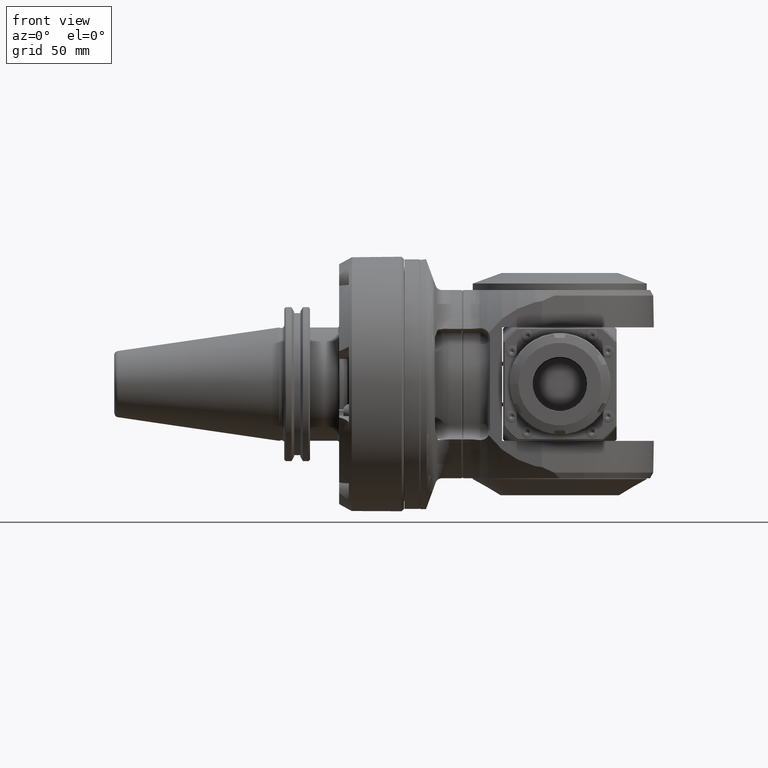
[diagram: clean part render]
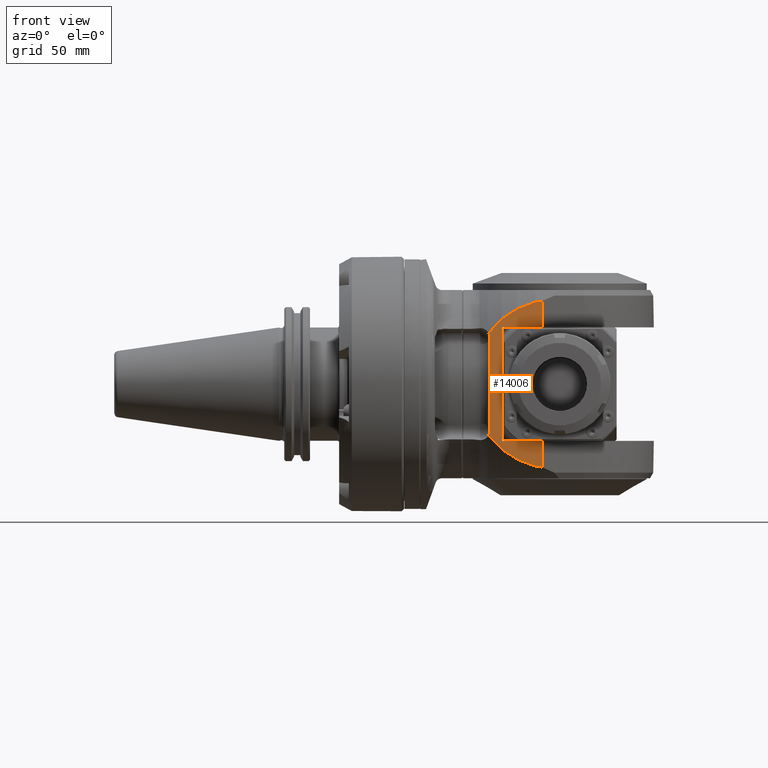
[diagram: same view with one face highlighted and labeled with its STEP entity id]
A machine part, front view. The second image highlights one B-rep face of the part: STEP entity #14006.
In plain terms, the highlighted planar face has unit normal (-0, 1, 0).
Its self-contained STEP definition (entity closure, byte-faithful):
#78=(
BOUNDED_CURVE()
B_SPLINE_CURVE(2,(#23138,#23139,#23140),.UNSPECIFIED.,.F.,.F.)
B_SPLINE_CURVE_WITH_KNOTS((3,3),(-1.75057441387289,-0.360316208340003),
 .UNSPECIFIED.)
CURVE()
GEOMETRIC_REPRESENTATION_ITEM()
RATIONAL_B_SPLINE_CURVE((1.01024396396153,1.00848071304012,1.0030571417366))
REPRESENTATION_ITEM('')
);
#79=(
BOUNDED_CURVE()
B_SPLINE_CURVE(2,(#23168,#23169,#23170),.UNSPECIFIED.,.F.,.F.)
B_SPLINE_CURVE_WITH_KNOTS((3,3),(3.05467889782076,3.46616790777753),
 .UNSPECIFIED.)
CURVE()
GEOMETRIC_REPRESENTATION_ITEM()
RATIONAL_B_SPLINE_CURVE((1.00036148763574,1.00033763889384,1.00030080530806))
REPRESENTATION_ITEM('')
);
#80=(
BOUNDED_CURVE()
B_SPLINE_CURVE(2,(#23172,#23173,#23174),.UNSPECIFIED.,.F.,.F.)
B_SPLINE_CURVE_WITH_KNOTS((3,3),(-3.24681513796906,-2.15497419507469),
 .UNSPECIFIED.)
CURVE()
GEOMETRIC_REPRESENTATION_ITEM()
RATIONAL_B_SPLINE_CURVE((1.00089229311393,1.00173294473737,1.00190730204874))
REPRESENTATION_ITEM('')
);
#81=(
BOUNDED_CURVE()
B_SPLINE_CURVE(2,(#23176,#23177,#23178),.UNSPECIFIED.,.F.,.F.)
B_SPLINE_CURVE_WITH_KNOTS((3,3),(-2.46848863196936,-1.29943333709879),
 .UNSPECIFIED.)
CURVE()
GEOMETRIC_REPRESENTATION_ITEM()
RATIONAL_B_SPLINE_CURVE((1.0048911930473,1.0054658313077,1.00439914148234))
REPRESENTATION_ITEM('')
);
#82=(
BOUNDED_CURVE()
B_SPLINE_CURVE(2,(#23180,#23181,#23182),.UNSPECIFIED.,.F.,.F.)
B_SPLINE_CURVE_WITH_KNOTS((3,3),(-1.75057441387398,-0.360316208341167),
 .UNSPECIFIED.)
CURVE()
GEOMETRIC_REPRESENTATION_ITEM()
RATIONAL_B_SPLINE_CURVE((1.01024396396154,1.00848071304013,1.00305714173661))
REPRESENTATION_ITEM('')
);
#83=(
BOUNDED_CURVE()
B_SPLINE_CURVE(2,(#23188,#23189,#23190),.UNSPECIFIED.,.F.,.F.)
B_SPLINE_CURVE_WITH_KNOTS((3,3),(1.6499029197804,2.81895816475583),
 .UNSPECIFIED.)
CURVE()
GEOMETRIC_REPRESENTATION_ITEM()
RATIONAL_B_SPLINE_CURVE((1.00489119309635,1.00546583126218,1.00439914148234))
REPRESENTATION_ITEM('')
);
#84=(
BOUNDED_CURVE()
B_SPLINE_CURVE(2,(#23192,#23193,#23194),.UNSPECIFIED.,.F.,.F.)
B_SPLINE_CURVE_WITH_KNOTS((3,3),(0.491702745816437,1.58354372808973),
 .UNSPECIFIED.)
CURVE()
GEOMETRIC_REPRESENTATION_ITEM()
RATIONAL_B_SPLINE_CURVE((1.00089229312856,1.00173294477653,1.00190730206435))
REPRESENTATION_ITEM('')
);
#85=(
BOUNDED_CURVE()
B_SPLINE_CURVE(2,(#23195,#23196,#23197),.UNSPECIFIED.,.F.,.F.)
B_SPLINE_CURVE_WITH_KNOTS((3,3),(1.13165570354855,1.54314470344019),
 .UNSPECIFIED.)
CURVE()
GEOMETRIC_REPRESENTATION_ITEM()
RATIONAL_B_SPLINE_CURVE((1.00030080440062,1.00033763804109,1.00036148683708))
REPRESENTATION_ITEM('')
);
#463=PLANE('',#15094);
#1447=FACE_OUTER_BOUND('',#2326,.T.);
#2326=EDGE_LOOP('',(#10247,#10248,#10249,#10250,#10251,#10252,#10253,#10254,
#10255,#10256,#10257,#10258,#10259,#10260,#10261,#10262,#10263,#10264,#10265));
#3114=LINE('',#21373,#4096);
#3133=LINE('',#21630,#4115);
#3136=LINE('',#21645,#4118);
#3142=LINE('',#21689,#4124);
#3143=LINE('',#21692,#4125);
#3243=LINE('',#23164,#4225);
#3244=LINE('',#23166,#4226);
#3245=LINE('',#23185,#4227);
#3246=LINE('',#23198,#4228);
#4096=VECTOR('',#16482,28.5);
#4115=VECTOR('',#16589,70.);
#4118=VECTOR('',#16602,5.971535280707);
#4124=VECTOR('',#16620,18.50405554152);
#4125=VECTOR('',#16623,16.0961908628);
#4225=VECTOR('',#17227,18.50405554152);
#4226=VECTOR('',#17228,16.09619086282);
#4227=VECTOR('',#17231,28.5);
#4228=VECTOR('',#17234,5.971535280707);
#5226=CIRCLE('',#15095,6.);
#5227=CIRCLE('',#15096,6.);
#5862=VERTEX_POINT('',#21370);
#5863=VERTEX_POINT('',#21372);
#5915=VERTEX_POINT('',#21626);
#5916=VERTEX_POINT('',#21628);
#5923=VERTEX_POINT('',#21644);
#5930=VERTEX_POINT('',#21678);
#5933=VERTEX_POINT('',#21691);
#6116=VERTEX_POINT('',#23136);
#6117=VERTEX_POINT('',#23137);
#6118=VERTEX_POINT('',#23162);
#6119=VERTEX_POINT('',#23163);
#6120=VERTEX_POINT('',#23165);
#6121=VERTEX_POINT('',#23167);
#6122=VERTEX_POINT('',#23171);
#6123=VERTEX_POINT('',#23175);
#6124=VERTEX_POINT('',#23179);
#6125=VERTEX_POINT('',#23183);
#6126=VERTEX_POINT('',#23187);
#6127=VERTEX_POINT('',#23191);
#7281=EDGE_CURVE('',#5862,#5863,#3114,.T.);
#7354=EDGE_CURVE('',#5916,#5915,#3133,.T.);
#7361=EDGE_CURVE('',#5915,#5923,#3136,.T.);
#7375=EDGE_CURVE('',#5930,#5923,#3142,.T.);
#7376=EDGE_CURVE('',#5930,#5933,#3143,.T.);
#7674=EDGE_CURVE('',#6116,#6117,#78,.T.);
#7677=EDGE_CURVE('',#6118,#6119,#3243,.T.);
#7678=EDGE_CURVE('',#6120,#6118,#3244,.T.);
#7679=EDGE_CURVE('',#6121,#6120,#79,.T.);
#7680=EDGE_CURVE('',#6121,#6122,#80,.T.);
#7681=EDGE_CURVE('',#6122,#6123,#81,.T.);
#7682=EDGE_CURVE('',#6123,#6124,#82,.T.);
#7683=EDGE_CURVE('',#6124,#6125,#5226,.T.);
#7684=EDGE_CURVE('',#5863,#6125,#3245,.T.);
#7685=EDGE_CURVE('',#5862,#6117,#5227,.T.);
#7686=EDGE_CURVE('',#6126,#6116,#83,.T.);
#7687=EDGE_CURVE('',#6127,#6126,#84,.T.);
#7688=EDGE_CURVE('',#5933,#6127,#85,.T.);
#7689=EDGE_CURVE('',#6119,#5916,#3246,.T.);
#10247=ORIENTED_EDGE('',*,*,#7677,.F.);
#10248=ORIENTED_EDGE('',*,*,#7678,.F.);
#10249=ORIENTED_EDGE('',*,*,#7679,.F.);
#10250=ORIENTED_EDGE('',*,*,#7680,.T.);
#10251=ORIENTED_EDGE('',*,*,#7681,.T.);
#10252=ORIENTED_EDGE('',*,*,#7682,.T.);
#10253=ORIENTED_EDGE('',*,*,#7683,.T.);
#10254=ORIENTED_EDGE('',*,*,#7684,.F.);
#10255=ORIENTED_EDGE('',*,*,#7281,.F.);
#10256=ORIENTED_EDGE('',*,*,#7685,.T.);
#10257=ORIENTED_EDGE('',*,*,#7674,.F.);
#10258=ORIENTED_EDGE('',*,*,#7686,.F.);
#10259=ORIENTED_EDGE('',*,*,#7687,.F.);
#10260=ORIENTED_EDGE('',*,*,#7688,.F.);
#10261=ORIENTED_EDGE('',*,*,#7376,.F.);
#10262=ORIENTED_EDGE('',*,*,#7375,.T.);
#10263=ORIENTED_EDGE('',*,*,#7361,.F.);
#10264=ORIENTED_EDGE('',*,*,#7354,.F.);
#10265=ORIENTED_EDGE('',*,*,#7689,.F.);
#14006=ADVANCED_FACE('',(#1447),#463,.F.);
#15094=AXIS2_PLACEMENT_3D('',#23161,#17225,#17226);
#15095=AXIS2_PLACEMENT_3D('',#23184,#17229,#17230);
#15096=AXIS2_PLACEMENT_3D('',#23186,#17232,#17233);
#16482=DIRECTION('',(1.,0.,0.));
#16589=DIRECTION('',(-1.,0.,0.));
#16602=DIRECTION('',(0.,-1.,2.617742247496E-14));
#16620=DIRECTION('',(0.,1.,0.));
#16623=DIRECTION('',(-1.,-1.849614041117E-13,-4.45849685329E-14));
#17225=DIRECTION('center_axis',(0.,0.,-1.));
#17226=DIRECTION('ref_axis',(0.,1.,0.));
#17227=DIRECTION('',(0.,1.,-1.651169797298E-14));
#17228=DIRECTION('',(-1.,1.574048035109E-12,4.118591647638E-13));
#17229=DIRECTION('center_axis',(0.,0.,-1.));
#17230=DIRECTION('ref_axis',(0.495651403660401,-0.868521551862402,0.));
#17231=DIRECTION('',(1.,0.,0.));
#17232=DIRECTION('center_axis',(0.,0.,-1.));
#17233=DIRECTION('ref_axis',(0.,-1.,0.));
#17234=DIRECTION('',(0.,1.,4.997507927039E-14));
#21370=CARTESIAN_POINT('',(-28.5,43.,63.));
#21372=CARTESIAN_POINT('',(0.,43.,63.));
#21373=CARTESIAN_POINT('',(-28.5,43.,63.));
#21626=CARTESIAN_POINT('',(-35.,35.5,63.));
#21628=CARTESIAN_POINT('',(35.,35.5,63.));
#21630=CARTESIAN_POINT('',(35.,35.5,63.));
#21644=CARTESIAN_POINT('',(-35.,29.52846471929,63.));
#21645=CARTESIAN_POINT('',(-35.,35.5,63.));
#21678=CARTESIAN_POINT('',(-35.,11.02440917778,63.));
#21689=CARTESIAN_POINT('',(-35.,11.02440917778,63.));
#21691=CARTESIAN_POINT('',(-51.0961908628,11.02440917778,63.));
#21692=CARTESIAN_POINT('',(-35.,11.02440917778,63.));
#23136=CARTESIAN_POINT('',(-40.23136214448,35.65374444704,63.));
#23137=CARTESIAN_POINT('',(-31.47390842196,43.78887068883,63.));
#23138=CARTESIAN_POINT('Ctrl Pts',(-40.2313621444497,35.6537444470694,63.));
#23139=CARTESIAN_POINT('Ctrl Pts',(-35.7221696137501,40.2180841021291,63.));
#23140=CARTESIAN_POINT('Ctrl Pts',(-31.4739084219595,43.7888706888291,63.));
#23161=CARTESIAN_POINT('Origin',(82.23996877314,0.,63.));
#23162=CARTESIAN_POINT('',(35.,11.02440917778,63.));
#23163=CARTESIAN_POINT('',(35.,29.52846471929,63.));
#23164=CARTESIAN_POINT('',(35.,11.02440917778,63.));
#23165=CARTESIAN_POINT('',(51.0961908628,11.02440917777,63.));
#23166=CARTESIAN_POINT('',(51.09619086282,11.02440917775,62.99999999999));
#23167=CARTESIAN_POINT('',(50.5129934127871,15.208883706159,62.9999999897283));
#23168=CARTESIAN_POINT('Ctrl Pts',(50.5129933905584,15.2088837029939,63.));
#23169=CARTESIAN_POINT('Ctrl Pts',(50.8039326150444,13.1286550741669,63.));
#23170=CARTESIAN_POINT('Ctrl Pts',(51.0961908627975,11.0244091777697,63.));
#23171=CARTESIAN_POINT('',(46.4118791833364,26.0375730676297,62.9999999182663));
#23172=CARTESIAN_POINT('Ctrl Pts',(50.5129934104487,15.208883705156,63.));
#23173=CARTESIAN_POINT('Ctrl Pts',(48.4301947652969,20.8523217398143,63.));
#23174=CARTESIAN_POINT('Ctrl Pts',(46.4118790480791,26.0375730147016,63.));
#23175=CARTESIAN_POINT('',(40.23136214448,35.65374444704,63.));
#23176=CARTESIAN_POINT('Ctrl Pts',(46.4118791373507,26.0375730390061,63.));
#23177=CARTESIAN_POINT('Ctrl Pts',(43.2509284499282,31.188633624355,63.));
#23178=CARTESIAN_POINT('Ctrl Pts',(40.23136214448,35.65374444704,63.));
#23179=CARTESIAN_POINT('',(31.47390842196,43.78887068883,63.));
#23180=CARTESIAN_POINT('Ctrl Pts',(40.2313621444497,35.6537444470693,63.));
#23181=CARTESIAN_POINT('Ctrl Pts',(35.7221696137501,40.2180841021291,63.));
#23182=CARTESIAN_POINT('Ctrl Pts',(31.4739084219595,43.7888706888291,63.));
#23183=CARTESIAN_POINT('',(28.5,43.,63.));
#23184=CARTESIAN_POINT('Origin',(28.5,49.,63.));
#23185=CARTESIAN_POINT('',(-1.761110402475E-14,43.,63.));
#23186=CARTESIAN_POINT('Origin',(-28.5,49.,63.));
#23187=CARTESIAN_POINT('',(-46.41187886738,26.03757347895,63.));
#23188=CARTESIAN_POINT('Ctrl Pts',(-46.4118788673785,26.0375734789507,63.));
#23189=CARTESIAN_POINT('Ctrl Pts',(-43.2509283211902,31.1886338147232,63.));
#23190=CARTESIAN_POINT('Ctrl Pts',(-40.23136214448,35.65374444704,63.));
#23191=CARTESIAN_POINT('',(-50.51299337388,15.2088838033792,63.0000000011979));
#23192=CARTESIAN_POINT('Ctrl Pts',(-50.5129933741604,15.2088838034809,63.));
#23193=CARTESIAN_POINT('Ctrl Pts',(-48.4301946545561,20.8523220374037,63.));
#23194=CARTESIAN_POINT('Ctrl Pts',(-46.4118788673879,26.0375734789151,63.));
#23195=CARTESIAN_POINT('Ctrl Pts',(-51.0961908627961,11.0244091777795,63.));
#23196=CARTESIAN_POINT('Ctrl Pts',(-50.8039326079667,13.1286551251258,63.));
#23197=CARTESIAN_POINT('Ctrl Pts',(-50.5129933764681,15.2088838037406,63.));
#23198=CARTESIAN_POINT('',(35.,29.52846471929,63.));